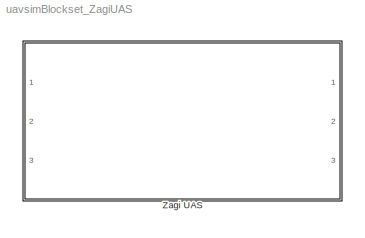
MODEL uavsimBlockset_ZagiUAS
KIND library
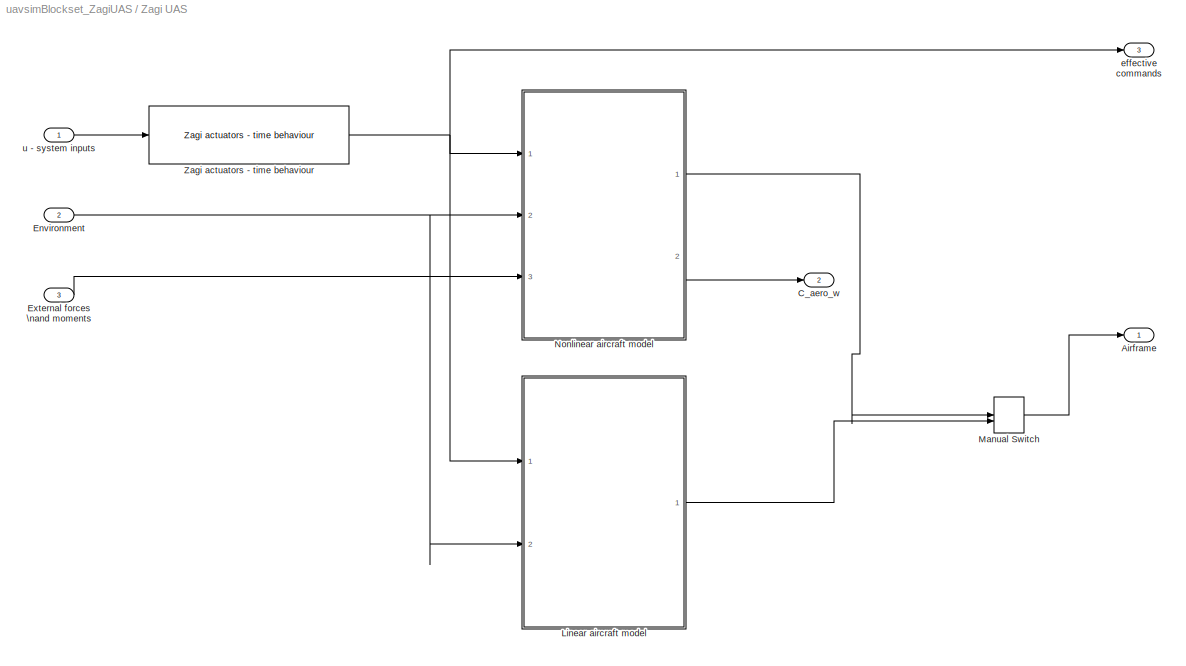
BLOCK [SubSystem] Zagi UAS
  Ports = [3, 3]
  RequestExecContextInheritance = off
  SID = 3696
BLOCK [Outport] Zagi UAS/Airframe
  IconDisplay = Port number
  OutDataTypeStr = Bus: Airframe
  SID = 3835
BLOCK [Outport] Zagi UAS/C_aero_w
  IconDisplay = Port number
  Port = 2
  SID = 4430
BLOCK [Inport] Zagi UAS/Environment
  IconDisplay = Port number
  OutDataTypeStr = Bus: Environment
  Port = 2
  SID = 4016
BLOCK [Inport] Zagi UAS/External forces \nand moments
  IconDisplay = Port number
  Port = 3
  SID = 4432
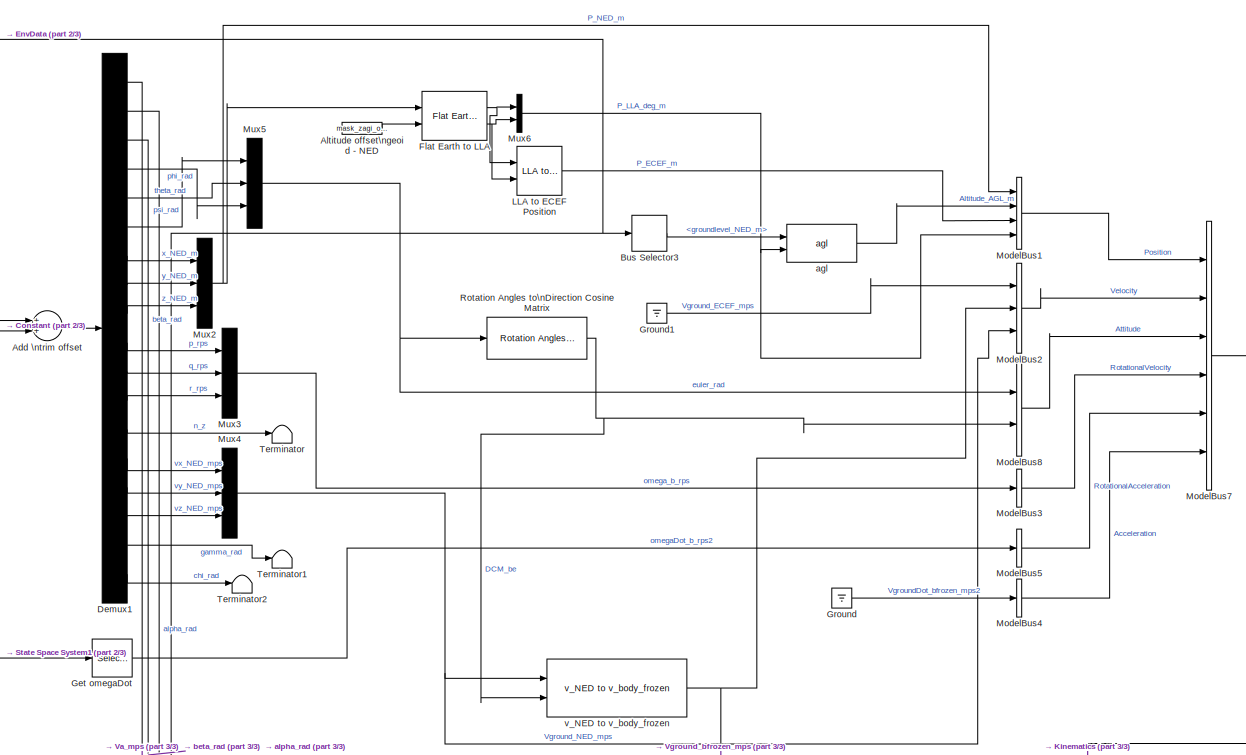
[diagram: Zagi UAS/Linear aircraft model - part 1/3, central region]
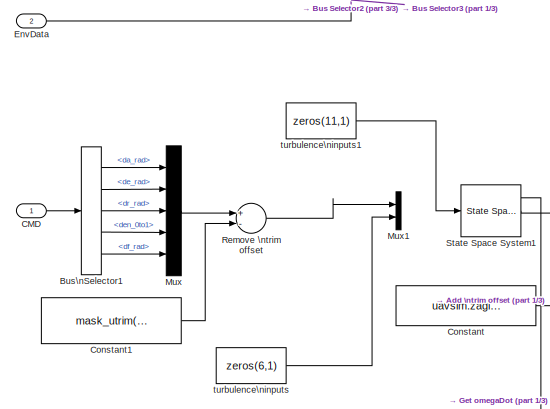
[diagram: Zagi UAS/Linear aircraft model - part 2/3, top left region]
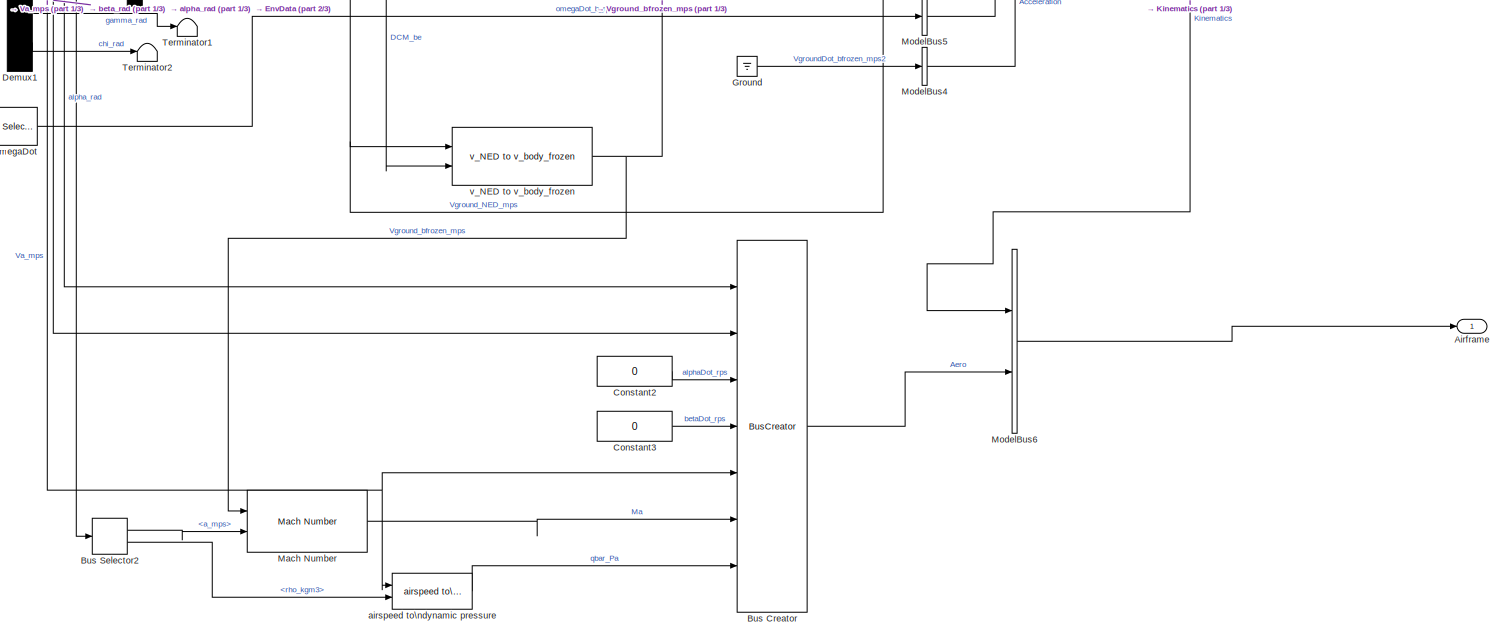
[diagram: Zagi UAS/Linear aircraft model - part 3/3, bottom center region]
BLOCK [SubSystem] Zagi UAS/Linear aircraft model
  Ports = [2, 1]
  RequestExecContextInheritance = off
  SID = 4581
BLOCK [Sum] Zagi UAS/Linear aircraft model/Add \ntrim offset
  InputSameDT = off
  OutDataTypeStr = Inherit: Inherit via internal rule
  Ports = [2, 1]
  SID = 4634
  SaturateOnIntegerOverflow = off
BLOCK [Outport] Zagi UAS/Linear aircraft model/Airframe
  IconDisplay = Port number
  SID = 4596
BLOCK [Constant] Zagi UAS/Linear aircraft model/Altitude offset\ngeoid - NED
  SID = 4614
  Value = mask_zagi_originNED_ECEF_rrm(3)
BLOCK [BusCreator] Zagi UAS/Linear aircraft model/Bus Creator
  DisplayOption = bar
  Inputs = 7
  Ports = [7, 1]
  SID = 4610
BLOCK [BusSelector] Zagi UAS/Linear aircraft model/Bus Selector2
  OutputSignals = a_mps,rho_kgm3
  Ports = [1, 2]
  SID = 4684
BLOCK [BusSelector] Zagi UAS/Linear aircraft model/Bus Selector3
  OutputSignals = groundlevel_NED_m
  Ports = [1, 1]
  SID = 4589
BLOCK [BusSelector] Zagi UAS/Linear aircraft model/Bus\nSelector1
  OutputSignals = da_rad,de_rad,dr_rad,den_0to1,df_rad
  Ports = [1, 5]
  SID = 4636
BLOCK [Inport] Zagi UAS/Linear aircraft model/CMD
  IconDisplay = Port number
  OutDataTypeStr = Bus: CMD
  SID = 4582
BLOCK [Constant] Zagi UAS/Linear aircraft model/Constant
  SID = 4635
  Value = uavsim.zagi.y_trim(13:end)
BLOCK [Constant] Zagi UAS/Linear aircraft model/Constant1
  SID = 4639
  Value = mask_utrim(1:5)
BLOCK [Constant] Zagi UAS/Linear aircraft model/Constant2
  SID = 4611
  Value = 0
BLOCK [Constant] Zagi UAS/Linear aircraft model/Constant3
  SID = 4612
  Value = 0
BLOCK [Demux] Zagi UAS/Linear aircraft model/Demux1
  DisplayOption = bar
  Outputs = 18
  Ports = [1, 18]
  SID = 4640
BLOCK [Inport] Zagi UAS/Linear aircraft model/EnvData
  IconDisplay = Port number
  Port = 2
  SID = 4583
BLOCK [Reference] Zagi UAS/Linear aircraft model/Flat Earth to LLA  REF=aerolibtransform2/Flat Earth to LLA
  F = 1/298.257223563
  LL0 = rad2deg(mask_zagi_originNED_ECEF_rrm(1:2))
  Ports = [2, 2]
  R = 6378137
  SID = 4648
  SourceBlock = aerolibtransform2/Flat Earth to LLA
  SourceType = Flat Earth to LLA
  psi = 0
  ptype = Earth (WGS84)
  units = Metric (MKS)
BLOCK [Selector] Zagi UAS/Linear aircraft model/Get omegaDot
  Indices = 10:12
  InputPortWidth = 12
  Ports = [1, 1]
  SID = 4680
BLOCK [Ground] Zagi UAS/Linear aircraft model/Ground
  SID = 4691
BLOCK [Ground] Zagi UAS/Linear aircraft model/Ground1
  SID = 4692
BLOCK [Reference] Zagi UAS/Linear aircraft model/LLA to ECEF Position  REF=aerolibtransform2/LLA to ECEF Position
  F = 1/298.257223563
  Ports = [2, 1]
  R = 6378137
  SID = 4651
  SourceBlock = aerolibtransform2/LLA to ECEF Position
  SourceType = LLA to ECEF
  ptype = Earth (WGS84)
  units = Metric (MKS)
BLOCK [Reference] Zagi UAS/Linear aircraft model/Mach Number  REF=aerolibasang/Mach Number
  Ports = [2, 1]
  SID = 4683
  SourceBlock = aerolibasang/Mach Number
  SourceType = Mach Number
BLOCK [BusCreator] Zagi UAS/Linear aircraft model/ModelBus1
  DisplayOption = bar
  OutDataTypeStr = Bus: Position
  Ports = [4, 1]
  SID = 4620
BLOCK [BusCreator] Zagi UAS/Linear aircraft model/ModelBus2
  DisplayOption = bar
  Inputs = 3
  OutDataTypeStr = Bus: Velocity
  Ports = [3, 1]
  SID = 4621
BLOCK [BusCreator] Zagi UAS/Linear aircraft model/ModelBus3
  DisplayOption = bar
  Inputs = 1
  OutDataTypeStr = Bus: RotationalVelocity
  Ports = [1, 1]
  SID = 4622
BLOCK [BusCreator] Zagi UAS/Linear aircraft model/ModelBus4
  DisplayOption = bar
  Inputs = 1
  OutDataTypeStr = Bus: Acceleration
  Ports = [1, 1]
  SID = 4623
BLOCK [BusCreator] Zagi UAS/Linear aircraft model/ModelBus5
  DisplayOption = bar
  Inputs = 1
  OutDataTypeStr = Bus: RotationalAcceleration
  Ports = [1, 1]
  SID = 4624
BLOCK [BusCreator] Zagi UAS/Linear aircraft model/ModelBus6
  DisplayOption = bar
  Inputs = 2
  NonVirtualBus = on
  OutDataTypeStr = Bus: Airframe
  Ports = [2, 1]
  SID = 4594
BLOCK [BusCreator] Zagi UAS/Linear aircraft model/ModelBus7
  DisplayOption = bar
  Inputs = 6
  NonVirtualBus = on
  OutDataTypeStr = Bus: Kinematics
  Ports = [6, 1]
  SID = 4625
BLOCK [BusCreator] Zagi UAS/Linear aircraft model/ModelBus8
  DisplayOption = bar
  Inputs = 2
  OutDataTypeStr = Bus: Attitude
  Ports = [2, 1]
  SID = 4626
BLOCK [Mux] Zagi UAS/Linear aircraft model/Mux
  DisplayOption = bar
  Inputs = 5
  Ports = [5, 1]
  SID = 4637
BLOCK [Mux] Zagi UAS/Linear aircraft model/Mux1
  DisplayOption = bar
  Inputs = 2
  Ports = [2, 1]
  SID = 4642
BLOCK [Mux] Zagi UAS/Linear aircraft model/Mux2
  DisplayOption = bar
  Inputs = 3
  Ports = [3, 1]
  SID = 4644
BLOCK [Mux] Zagi UAS/Linear aircraft model/Mux3
  DisplayOption = bar
  Inputs = 3
  Ports = [3, 1]
  SID = 4645
BLOCK [Mux] Zagi UAS/Linear aircraft model/Mux4
  DisplayOption = bar
  Inputs = 3
  Ports = [3, 1]
  SID = 4646
BLOCK [Mux] Zagi UAS/Linear aircraft model/Mux5
  DisplayOption = bar
  Inputs = 3
  Ports = [3, 1]
  SID = 4647
BLOCK [Mux] Zagi UAS/Linear aircraft model/Mux6
  DisplayOption = bar
  Inputs = 2
  Ports = [2, 1]
  SID = 4649
BLOCK [Sum] Zagi UAS/Linear aircraft model/Remove \ntrim offset
  InputSameDT = off
  Inputs = +-
  OutDataTypeStr = Inherit: Inherit via internal rule
  Ports = [2, 1]
  SID = 4638
  SaturateOnIntegerOverflow = off
BLOCK [Reference] Zagi UAS/Linear aircraft model/Rotation Angles to\nDirection Cosine Matrix  REF=aerolibtransform2/Rotation Angles to\nDirection Cosine Matrix
  AttributesFormatString = Rotation Order: %<rotationOrder>
  Ports = [1, 1]
  SID = 4652
  SourceBlock = aerolibtransform2/Rotation Angles to\nDirection Cosine Matrix
  SourceType = Ang2DCM
  rotationOrder = ZYX
BLOCK [Reference] Zagi UAS/Linear aircraft model/State Space System1  REF=uavsimBlockset_StateSpaceSystem/State Space System
  Ports = [1, 3]
  SID = 4677
  SourceBlock = uavsimBlockset_StateSpaceSystem/State Space System
  mask_a = mask_ssm.a
  mask_b = mask_ssm.b
  mask_c = mask_ssm.c
  mask_d = mask_ssm.d
  mask_x0 = mask_xtrim
BLOCK [Terminator] Zagi UAS/Linear aircraft model/Terminator
  SID = 4685
BLOCK [Terminator] Zagi UAS/Linear aircraft model/Terminator1
  SID = 4686
BLOCK [Terminator] Zagi UAS/Linear aircraft model/Terminator2
  SID = 4687
BLOCK [Reference] Zagi UAS/Linear aircraft model/agl  REF=uavsimblockset_SixDOFKinematics/Aircraft kinematics/agl
  Ports = [2, 1]
  SID = 4630
  SourceBlock = uavsimblockset_SixDOFKinematics/Aircraft kinematics/agl
  SourceType = SubSystem
BLOCK [Reference] Zagi UAS/Linear aircraft model/airspeed to\ndynamic pressure  REF=formationFlyingBlockset/airspeed to\ndynamic pressure
  Ports = [2, 1]
  SID = 4682
  SourceBlock = formationFlyingBlockset/airspeed to\ndynamic pressure
  SourceType = SubSystem
BLOCK [Constant] Zagi UAS/Linear aircraft model/turbulence\ninputs
  SID = 4643
  Value = zeros(6,1)
BLOCK [Constant] Zagi UAS/Linear aircraft model/turbulence\ninputs1
  SID = 4693
  Value = zeros(11,1)
BLOCK [Reference] Zagi UAS/Linear aircraft model/v_NED to v_body_frozen  REF=formationFlyingBlockset/v_NED to v_body_frozen
  Ports = [2, 1]
  SID = 4689
  SourceBlock = formationFlyingBlockset/v_NED to v_body_frozen
  SourceType = SubSystem
BLOCK [ManualSwitch] Zagi UAS/Manual Switch
  SID = 4598
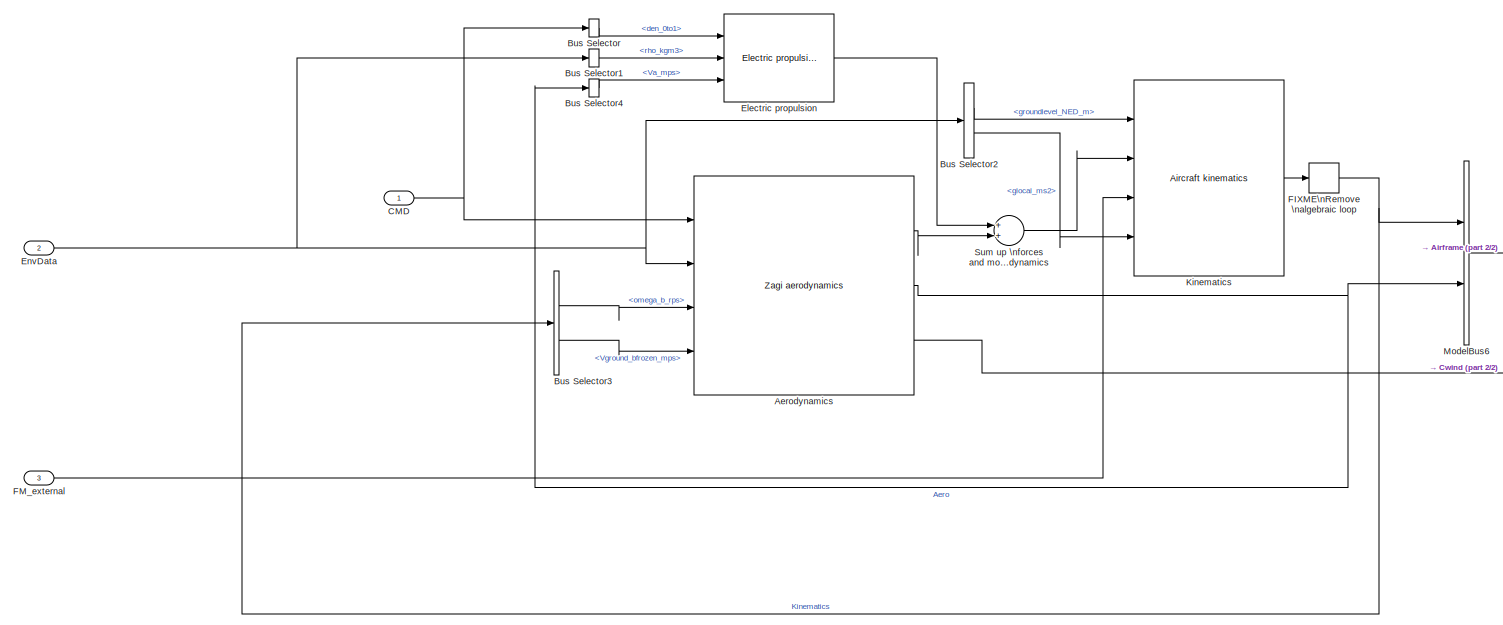
[diagram: Zagi UAS/Nonlinear aircraft model - part 1/2, most of the canvas]
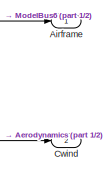
[diagram: Zagi UAS/Nonlinear aircraft model - part 2/2, middle right region]
BLOCK [SubSystem] Zagi UAS/Nonlinear aircraft model
  Ports = [3, 2]
  RequestExecContextInheritance = off
  SID = 4472
BLOCK [Reference] Zagi UAS/Nonlinear aircraft model/Aerodynamics  REF=uavsimBlockset_Zagi_Aerandpropulsion/Zagi aerodynamics
  Ports = [4, 3]
  SID = 4579
  SourceBlock = uavsimBlockset_Zagi_Aerandpropulsion/Zagi aerodynamics
  SourceType = SubSystem
BLOCK [Outport] Zagi UAS/Nonlinear aircraft model/Airframe
  IconDisplay = Port number
  OutDataTypeStr = Bus: Airframe
  SID = 4476
BLOCK [BusSelector] Zagi UAS/Nonlinear aircraft model/Bus Selector
  OutputSignals = den_0to1
  Ports = [1, 1]
  SID = 4478
BLOCK [BusSelector] Zagi UAS/Nonlinear aircraft model/Bus Selector1
  OutputSignals = rho_kgm3
  Ports = [1, 1]
  SID = 4479
BLOCK [BusSelector] Zagi UAS/Nonlinear aircraft model/Bus Selector2
  OutputSignals = groundlevel_NED_m,glocal_ms2
  Ports = [1, 2]
  SID = 3828
BLOCK [BusSelector] Zagi UAS/Nonlinear aircraft model/Bus Selector3
  OutputSignals = RotationalVelocity.omega_b_rps,Velocity.Vground_bfrozen_mps
  Ports = [1, 2]
  SID = 3829
BLOCK [BusSelector] Zagi UAS/Nonlinear aircraft model/Bus Selector4
  OutputSignals = Va_mps
  Ports = [1, 1]
  SID = 4480
BLOCK [Inport] Zagi UAS/Nonlinear aircraft model/CMD
  IconDisplay = Port number
  SID = 4473
BLOCK [Outport] Zagi UAS/Nonlinear aircraft model/Cwind
  IconDisplay = Port number
  Port = 2
  SID = 4477
BLOCK [Reference] Zagi UAS/Nonlinear aircraft model/Electric propulsion  REF=uavsimBlockset_ElectricPropulsion/Electric propulsion
  Ports = [3, 1]
  SID = 4481
  SourceBlock = uavsimBlockset_ElectricPropulsion/Electric propulsion
  mask_C_prop = uavsim.zagi.engine.C_prop
  mask_S_prop = uavsim.zagi.engine.S_prop
  mask_k_motor = uavsim.zagi.engine.k_motor
BLOCK [Inport] Zagi UAS/Nonlinear aircraft model/EnvData
  IconDisplay = Port number
  Port = 2
  SID = 4474
BLOCK [Memory] Zagi UAS/Nonlinear aircraft model/FIXME\nRemove \nalgebraic loop
  SID = 4470
  X0 = 1e-6
BLOCK [Inport] Zagi UAS/Nonlinear aircraft model/FM_external
  IconDisplay = Port number
  Port = 3
  SID = 4475
BLOCK [Reference] Zagi UAS/Nonlinear aircraft model/Kinematics  REF=uavsimblockset_SixDOFKinematics/Aircraft kinematics
  Ports = [4, 1]
  SID = 3840
  SourceBlock = uavsimblockset_SixDOFKinematics/Aircraft kinematics
  mask_P0_ECEF_rrm = mask_zagi_p0_ECEF_lla
  mask_inertia = uavsim.zagi.inertiaTensor
  mask_mass = uavsim.zagi.mass
  mask_omega0 = mask_zagi_pqr0
  mask_originNED_ECEF_rrm = mask_zagi_originNED_ECEF_rrm
  mask_phithetapsi0 = mask_zagi_phithetapsi0
  mask_uvw0 = mask_zagi_uvw0
BLOCK [BusCreator] Zagi UAS/Nonlinear aircraft model/ModelBus6
  DisplayOption = bar
  Inputs = 2
  NonVirtualBus = on
  OutDataTypeStr = Bus: Airframe
  Ports = [2, 1]
  SID = 3833
BLOCK [Sum] Zagi UAS/Nonlinear aircraft model/Sum up \nforces and moments of engine and\naircraft aerodynamics
  InputSameDT = off
  OutDataTypeStr = Inherit: Inherit via internal rule
  Ports = [2, 1]
  SID = 4428
  SaturateOnIntegerOverflow = off
BLOCK [Reference] Zagi UAS/Zagi actuators - time behaviour  REF=formationFlyingBlockset/Zagi actuators - time behaviour
  Ports = [1, 1]
  SID = 4600
  SourceBlock = formationFlyingBlockset/Zagi actuators - time behaviour
  SourceType = SubSystem
BLOCK [Outport] Zagi UAS/effective commands
  IconDisplay = Port number
  OutDataTypeStr = Bus: CMD
  Port = 3
  SID = 4431
BLOCK [Inport] Zagi UAS/u - system inputs
  IconDisplay = Port number
  OutDataTypeStr = Bus: CMD
  SID = 3822
NET Zagi UAS/Environment:1 -> Zagi UAS/Linear aircraft model:2, Zagi UAS/Nonlinear aircraft model:2
LINE Zagi UAS/External forces \nand moments:1 -> Zagi UAS/Nonlinear aircraft model:3
LINE Zagi UAS/Linear aircraft model/Add \ntrim offset:1 -> Zagi UAS/Linear aircraft model/Demux1:1
LINE Zagi UAS/Linear aircraft model/Altitude offset\ngeoid - NED:1 -> Zagi UAS/Linear aircraft model/Flat Earth to LLA:2
LINE Zagi UAS/Linear aircraft model/Bus Creator:1 -> Zagi UAS/Linear aircraft model/ModelBus6:2
LINE Zagi UAS/Linear aircraft model/Bus Selector2:1 -> Zagi UAS/Linear aircraft model/Mach Number:2
LINE Zagi UAS/Linear aircraft model/Bus Selector2:2 -> Zagi UAS/Linear aircraft model/airspeed to\ndynamic pressure:2
LINE Zagi UAS/Linear aircraft model/Bus Selector3:1 -> Zagi UAS/Linear aircraft model/agl:1
LINE Zagi UAS/Linear aircraft model/Bus\nSelector1:1 -> Zagi UAS/Linear aircraft model/Mux:1
LINE Zagi UAS/Linear aircraft model/Bus\nSelector1:2 -> Zagi UAS/Linear aircraft model/Mux:2
LINE Zagi UAS/Linear aircraft model/Bus\nSelector1:3 -> Zagi UAS/Linear aircraft model/Mux:3
LINE Zagi UAS/Linear aircraft model/Bus\nSelector1:4 -> Zagi UAS/Linear aircraft model/Mux:4
LINE Zagi UAS/Linear aircraft model/Bus\nSelector1:5 -> Zagi UAS/Linear aircraft model/Mux:5
LINE Zagi UAS/Linear aircraft model/CMD:1 -> Zagi UAS/Linear aircraft model/Bus\nSelector1:1
LINE Zagi UAS/Linear aircraft model/Constant1:1 -> Zagi UAS/Linear aircraft model/Remove \ntrim offset:2
LINE Zagi UAS/Linear aircraft model/Constant2:1 -> Zagi UAS/Linear aircraft model/Bus Creator:3
LINE Zagi UAS/Linear aircraft model/Constant3:1 -> Zagi UAS/Linear aircraft model/Bus Creator:4
LINE Zagi UAS/Linear aircraft model/Constant:1 -> Zagi UAS/Linear aircraft model/Add \ntrim offset:2
NET Zagi UAS/Linear aircraft model/Demux1:1 -> Zagi UAS/Linear aircraft model/Bus Creator:5, Zagi UAS/Linear aircraft model/airspeed to\ndynamic pressure:1
LINE Zagi UAS/Linear aircraft model/Demux1:10 -> Zagi UAS/Linear aircraft model/Mux3:1
LINE Zagi UAS/Linear aircraft model/Demux1:11 -> Zagi UAS/Linear aircraft model/Mux3:2
LINE Zagi UAS/Linear aircraft model/Demux1:12 -> Zagi UAS/Linear aircraft model/Mux3:3
LINE Zagi UAS/Linear aircraft model/Demux1:13 -> Zagi UAS/Linear aircraft model/Terminator:1
LINE Zagi UAS/Linear aircraft model/Demux1:14 -> Zagi UAS/Linear aircraft model/Mux4:1
LINE Zagi UAS/Linear aircraft model/Demux1:15 -> Zagi UAS/Linear aircraft model/Mux4:2
LINE Zagi UAS/Linear aircraft model/Demux1:16 -> Zagi UAS/Linear aircraft model/Mux4:3
LINE Zagi UAS/Linear aircraft model/Demux1:17 -> Zagi UAS/Linear aircraft model/Terminator1:1
LINE Zagi UAS/Linear aircraft model/Demux1:18 -> Zagi UAS/Linear aircraft model/Terminator2:1
LINE Zagi UAS/Linear aircraft model/Demux1:2 -> Zagi UAS/Linear aircraft model/Bus Creator:1
LINE Zagi UAS/Linear aircraft model/Demux1:3 -> Zagi UAS/Linear aircraft model/Bus Creator:2
LINE Zagi UAS/Linear aircraft model/Demux1:4 -> Zagi UAS/Linear aircraft model/Mux5:3
LINE Zagi UAS/Linear aircraft model/Demux1:5 -> Zagi UAS/Linear aircraft model/Mux5:2
LINE Zagi UAS/Linear aircraft model/Demux1:6 -> Zagi UAS/Linear aircraft model/Mux5:1
LINE Zagi UAS/Linear aircraft model/Demux1:7 -> Zagi UAS/Linear aircraft model/Mux2:1
LINE Zagi UAS/Linear aircraft model/Demux1:8 -> Zagi UAS/Linear aircraft model/Mux2:2
LINE Zagi UAS/Linear aircraft model/Demux1:9 -> Zagi UAS/Linear aircraft model/Mux2:3
NET Zagi UAS/Linear aircraft model/EnvData:1 -> Zagi UAS/Linear aircraft model/Bus Selector2:1, Zagi UAS/Linear aircraft model/Bus Selector3:1
NET Zagi UAS/Linear aircraft model/Flat Earth to LLA:1 -> Zagi UAS/Linear aircraft model/LLA to ECEF Position:1, Zagi UAS/Linear aircraft model/Mux6:1
NET Zagi UAS/Linear aircraft model/Flat Earth to LLA:2 -> Zagi UAS/Linear aircraft model/LLA to ECEF Position:2, Zagi UAS/Linear aircraft model/Mux6:2
LINE Zagi UAS/Linear aircraft model/Get omegaDot:1 -> Zagi UAS/Linear aircraft model/ModelBus5:1
LINE Zagi UAS/Linear aircraft model/Ground1:1 -> Zagi UAS/Linear aircraft model/ModelBus2:1
LINE Zagi UAS/Linear aircraft model/Ground:1 -> Zagi UAS/Linear aircraft model/ModelBus4:1
LINE Zagi UAS/Linear aircraft model/LLA to ECEF Position:1 -> Zagi UAS/Linear aircraft model/ModelBus1:3
LINE Zagi UAS/Linear aircraft model/Mach Number:1 -> Zagi UAS/Linear aircraft model/Bus Creator:6
LINE Zagi UAS/Linear aircraft model/ModelBus1:1 -> Zagi UAS/Linear aircraft model/ModelBus7:1
LINE Zagi UAS/Linear aircraft model/ModelBus2:1 -> Zagi UAS/Linear aircraft model/ModelBus7:2
LINE Zagi UAS/Linear aircraft model/ModelBus3:1 -> Zagi UAS/Linear aircraft model/ModelBus7:4
LINE Zagi UAS/Linear aircraft model/ModelBus4:1 -> Zagi UAS/Linear aircraft model/ModelBus7:6
LINE Zagi UAS/Linear aircraft model/ModelBus5:1 -> Zagi UAS/Linear aircraft model/ModelBus7:5
LINE Zagi UAS/Linear aircraft model/ModelBus6:1 -> Zagi UAS/Linear aircraft model/Airframe:1
LINE Zagi UAS/Linear aircraft model/ModelBus7:1 -> Zagi UAS/Linear aircraft model/ModelBus6:1
LINE Zagi UAS/Linear aircraft model/ModelBus8:1 -> Zagi UAS/Linear aircraft model/ModelBus7:3
NET Zagi UAS/Linear aircraft model/Mux2:1 -> Zagi UAS/Linear aircraft model/Flat Earth to LLA:1, Zagi UAS/Linear aircraft model/ModelBus1:1
LINE Zagi UAS/Linear aircraft model/Mux3:1 -> Zagi UAS/Linear aircraft model/ModelBus3:1
NET Zagi UAS/Linear aircraft model/Mux4:1 -> Zagi UAS/Linear aircraft model/ModelBus2:3, Zagi UAS/Linear aircraft model/v_NED to v_body_frozen:1
NET Zagi UAS/Linear aircraft model/Mux5:1 -> Zagi UAS/Linear aircraft model/ModelBus8:1, Zagi UAS/Linear aircraft model/Rotation Angles to\nDirection Cosine Matrix:1
NET Zagi UAS/Linear aircraft model/Mux6:1 -> Zagi UAS/Linear aircraft model/ModelBus1:4, Zagi UAS/Linear aircraft model/agl:2
LINE Zagi UAS/Linear aircraft model/Mux:1 -> Zagi UAS/Linear aircraft model/Remove \ntrim offset:1
LINE Zagi UAS/Linear aircraft model/Remove \ntrim offset:1 -> Zagi UAS/Linear aircraft model/Mux1:1
NET Zagi UAS/Linear aircraft model/Rotation Angles to\nDirection Cosine Matrix:1 -> Zagi UAS/Linear aircraft model/ModelBus8:2, Zagi UAS/Linear aircraft model/v_NED to v_body_frozen:2
LINE Zagi UAS/Linear aircraft model/State Space System1:1 -> Zagi UAS/Linear aircraft model/Get omegaDot:1
LINE Zagi UAS/Linear aircraft model/State Space System1:2 -> Zagi UAS/Linear aircraft model/Add \ntrim offset:1
LINE Zagi UAS/Linear aircraft model/agl:1 -> Zagi UAS/Linear aircraft model/ModelBus1:2
LINE Zagi UAS/Linear aircraft model/airspeed to\ndynamic pressure:1 -> Zagi UAS/Linear aircraft model/Bus Creator:7
LINE Zagi UAS/Linear aircraft model/turbulence\ninputs1:1 -> Zagi UAS/Linear aircraft model/State Space System1:1
LINE Zagi UAS/Linear aircraft model/turbulence\ninputs:1 -> Zagi UAS/Linear aircraft model/Mux1:2
NET Zagi UAS/Linear aircraft model/v_NED to v_body_frozen:1 -> Zagi UAS/Linear aircraft model/Mach Number:1, Zagi UAS/Linear aircraft model/ModelBus2:2
LINE Zagi UAS/Linear aircraft model:1 -> Zagi UAS/Manual Switch:2
LINE Zagi UAS/Manual Switch:1 -> Zagi UAS/Airframe:1
LINE Zagi UAS/Nonlinear aircraft model/Aerodynamics:1 -> Zagi UAS/Nonlinear aircraft model/Sum up \nforces and moments of engine and\naircraft aerodynamics:2
NET Zagi UAS/Nonlinear aircraft model/Aerodynamics:2 -> Zagi UAS/Nonlinear aircraft model/Bus Selector4:1, Zagi UAS/Nonlinear aircraft model/ModelBus6:2
LINE Zagi UAS/Nonlinear aircraft model/Aerodynamics:3 -> Zagi UAS/Nonlinear aircraft model/Cwind:1
LINE Zagi UAS/Nonlinear aircraft model/Bus Selector1:1 -> Zagi UAS/Nonlinear aircraft model/Electric propulsion:2
LINE Zagi UAS/Nonlinear aircraft model/Bus Selector2:1 -> Zagi UAS/Nonlinear aircraft model/Kinematics:1
LINE Zagi UAS/Nonlinear aircraft model/Bus Selector2:2 -> Zagi UAS/Nonlinear aircraft model/Kinematics:4
LINE Zagi UAS/Nonlinear aircraft model/Bus Selector3:1 -> Zagi UAS/Nonlinear aircraft model/Aerodynamics:3
LINE Zagi UAS/Nonlinear aircraft model/Bus Selector3:2 -> Zagi UAS/Nonlinear aircraft model/Aerodynamics:4
LINE Zagi UAS/Nonlinear aircraft model/Bus Selector4:1 -> Zagi UAS/Nonlinear aircraft model/Electric propulsion:3
LINE Zagi UAS/Nonlinear aircraft model/Bus Selector:1 -> Zagi UAS/Nonlinear aircraft model/Electric propulsion:1
NET Zagi UAS/Nonlinear aircraft model/CMD:1 -> Zagi UAS/Nonlinear aircraft model/Aerodynamics:1, Zagi UAS/Nonlinear aircraft model/Bus Selector:1
LINE Zagi UAS/Nonlinear aircraft model/Electric propulsion:1 -> Zagi UAS/Nonlinear aircraft model/Sum up \nforces and moments of engine and\naircraft aerodynamics:1
NET Zagi UAS/Nonlinear aircraft model/EnvData:1 -> Zagi UAS/Nonlinear aircraft model/Aerodynamics:2, Zagi UAS/Nonlinear aircraft model/Bus Selector1:1, Zagi UAS/Nonlinear aircraft model/Bus Selector2:1
NET Zagi UAS/Nonlinear aircraft model/FIXME\nRemove \nalgebraic loop:1 -> Zagi UAS/Nonlinear aircraft model/Bus Selector3:1, Zagi UAS/Nonlinear aircraft model/ModelBus6:1
LINE Zagi UAS/Nonlinear aircraft model/FM_external:1 -> Zagi UAS/Nonlinear aircraft model/Kinematics:3
LINE Zagi UAS/Nonlinear aircraft model/Kinematics:1 -> Zagi UAS/Nonlinear aircraft model/FIXME\nRemove \nalgebraic loop:1
LINE Zagi UAS/Nonlinear aircraft model/ModelBus6:1 -> Zagi UAS/Nonlinear aircraft model/Airframe:1
LINE Zagi UAS/Nonlinear aircraft model/Sum up \nforces and moments of engine and\naircraft aerodynamics:1 -> Zagi UAS/Nonlinear aircraft model/Kinematics:2
LINE Zagi UAS/Nonlinear aircraft model:1 -> Zagi UAS/Manual Switch:1
LINE Zagi UAS/Nonlinear aircraft model:2 -> Zagi UAS/C_aero_w:1
NET Zagi UAS/Zagi actuators - time behaviour:1 -> Zagi UAS/Linear aircraft model:1, Zagi UAS/Nonlinear aircraft model:1, Zagi UAS/effective commands:1
LINE Zagi UAS/u - system inputs:1 -> Zagi UAS/Zagi actuators - time behaviour:1
note: NET lines group one-source signal fan-out (src -> all destinations, sorted); 1:1 wires keep LINE
